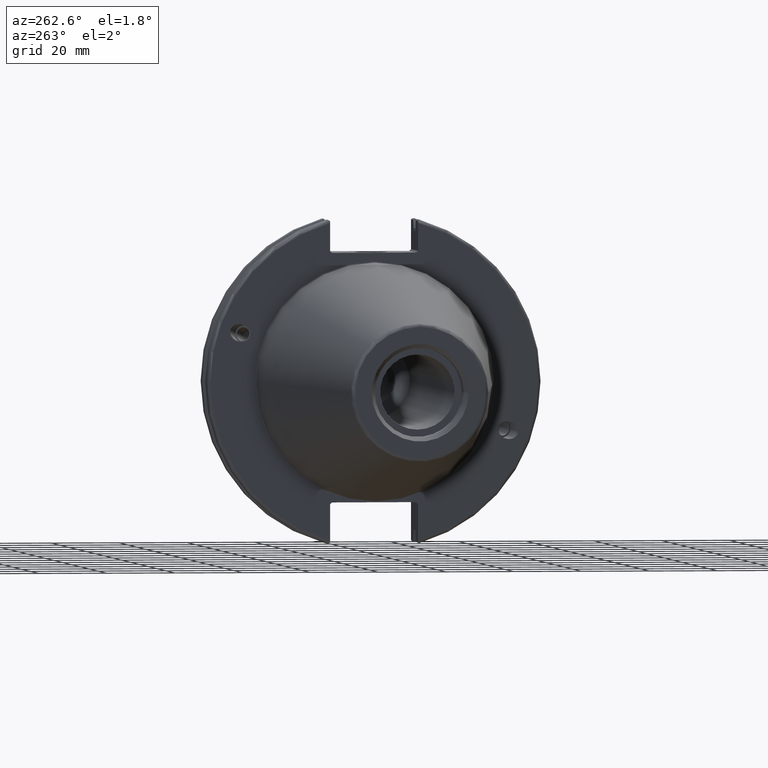
[diagram: clean part render]
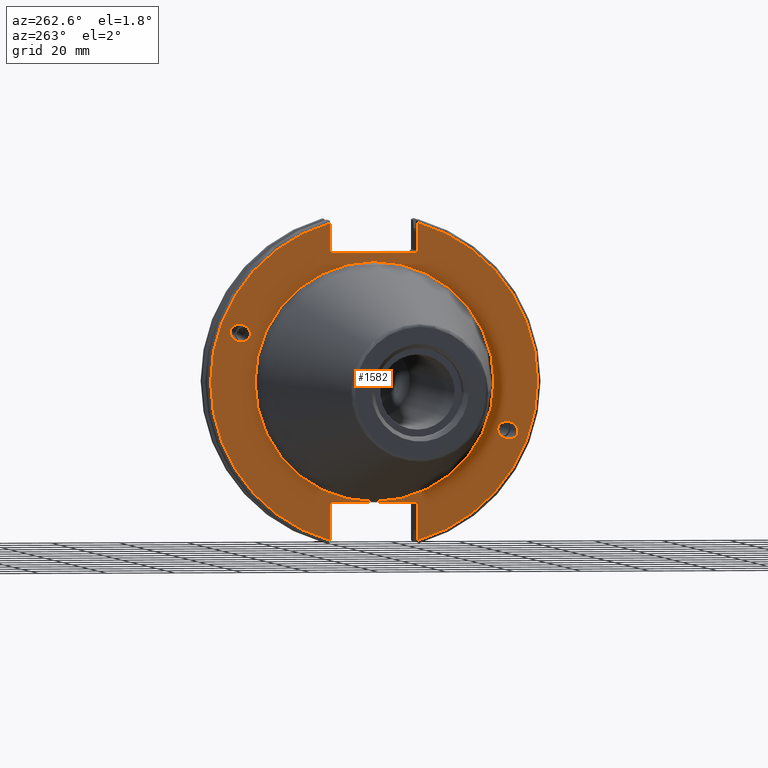
[diagram: same view with one face highlighted and labeled with its STEP entity id]
A machine part, auxiliary view. The second image highlights one B-rep face of the part: STEP entity #1582.
In plain terms, the highlighted planar face has unit normal (-1, 0, 0).
Its self-contained STEP definition (entity closure, byte-faithful):
#73=FACE_BOUND('',#342,.T.);
#74=FACE_BOUND('',#343,.T.);
#75=FACE_BOUND('',#344,.T.);
#90=PLANE('',#1749);
#165=CIRCLE('',#1747,35.125);
#167=CIRCLE('',#1750,48.2125);
#168=CIRCLE('',#1751,48.2125);
#235=FACE_OUTER_BOUND('',#341,.T.);
#341=EDGE_LOOP('',(#1273,#1274,#1275,#1276,#1277,#1278,#1279,#1280,#1281,
#1282,#1283,#1284));
#342=EDGE_LOOP('',(#1285));
#343=EDGE_LOOP('',(#1286));
#344=EDGE_LOOP('',(#1287));
#487=LINE('',#3087,#582);
#488=LINE('',#3089,#583);
#489=LINE('',#3091,#584);
#490=LINE('',#3093,#585);
#491=LINE('',#3095,#586);
#492=LINE('',#3099,#587);
#493=LINE('',#3101,#588);
#494=LINE('',#3103,#589);
#495=LINE('',#3105,#590);
#496=LINE('',#3106,#591);
#582=VECTOR('',#2071,10.);
#583=VECTOR('',#2072,10.);
#584=VECTOR('',#2073,10.);
#585=VECTOR('',#2074,10.);
#586=VECTOR('',#2075,10.);
#587=VECTOR('',#2078,10.);
#588=VECTOR('',#2079,10.);
#589=VECTOR('',#2080,10.);
#590=VECTOR('',#2081,10.);
#591=VECTOR('',#2082,10.);
#631=ELLIPSE('',#1709,3.05193647190364,2.5);
#632=ELLIPSE('',#1743,3.05193647190364,2.5);
#699=VERTEX_POINT('',#2812);
#737=VERTEX_POINT('',#3071);
#740=VERTEX_POINT('',#3078);
#741=VERTEX_POINT('',#3083);
#742=VERTEX_POINT('',#3084);
#743=VERTEX_POINT('',#3086);
#744=VERTEX_POINT('',#3088);
#745=VERTEX_POINT('',#3090);
#746=VERTEX_POINT('',#3092);
#747=VERTEX_POINT('',#3094);
#748=VERTEX_POINT('',#3096);
#749=VERTEX_POINT('',#3098);
#750=VERTEX_POINT('',#3100);
#751=VERTEX_POINT('',#3102);
#752=VERTEX_POINT('',#3104);
#881=EDGE_CURVE('',#699,#699,#631,.T.);
#932=EDGE_CURVE('',#737,#737,#632,.T.);
#935=EDGE_CURVE('',#740,#740,#165,.T.);
#937=EDGE_CURVE('',#741,#742,#167,.T.);
#938=EDGE_CURVE('',#741,#743,#487,.T.);
#939=EDGE_CURVE('',#744,#743,#488,.T.);
#940=EDGE_CURVE('',#744,#745,#489,.T.);
#941=EDGE_CURVE('',#746,#745,#490,.T.);
#942=EDGE_CURVE('',#746,#747,#491,.T.);
#943=EDGE_CURVE('',#748,#747,#168,.T.);
#944=EDGE_CURVE('',#748,#749,#492,.T.);
#945=EDGE_CURVE('',#750,#749,#493,.T.);
#946=EDGE_CURVE('',#750,#751,#494,.T.);
#947=EDGE_CURVE('',#752,#751,#495,.T.);
#948=EDGE_CURVE('',#752,#742,#496,.T.);
#1273=ORIENTED_EDGE('',*,*,#937,.F.);
#1274=ORIENTED_EDGE('',*,*,#938,.T.);
#1275=ORIENTED_EDGE('',*,*,#939,.F.);
#1276=ORIENTED_EDGE('',*,*,#940,.T.);
#1277=ORIENTED_EDGE('',*,*,#941,.F.);
#1278=ORIENTED_EDGE('',*,*,#942,.T.);
#1279=ORIENTED_EDGE('',*,*,#943,.F.);
#1280=ORIENTED_EDGE('',*,*,#944,.T.);
#1281=ORIENTED_EDGE('',*,*,#945,.F.);
#1282=ORIENTED_EDGE('',*,*,#946,.T.);
#1283=ORIENTED_EDGE('',*,*,#947,.F.);
#1284=ORIENTED_EDGE('',*,*,#948,.T.);
#1285=ORIENTED_EDGE('',*,*,#881,.T.);
#1286=ORIENTED_EDGE('',*,*,#932,.T.);
#1287=ORIENTED_EDGE('',*,*,#935,.F.);
#1582=ADVANCED_FACE('',(#235,#73,#74,#75),#90,.T.);
#1709=AXIS2_PLACEMENT_3D('',#2814,#1971,#1972);
#1743=AXIS2_PLACEMENT_3D('',#3073,#2055,#2056);
#1747=AXIS2_PLACEMENT_3D('',#3080,#2063,#2064);
#1749=AXIS2_PLACEMENT_3D('',#3082,#2067,#2068);
#1750=AXIS2_PLACEMENT_3D('',#3085,#2069,#2070);
#1751=AXIS2_PLACEMENT_3D('',#3097,#2076,#2077);
#1971=DIRECTION('center_axis',(1.,0.,0.));
#1972=DIRECTION('ref_axis',(0.,-0.939692620785908,-0.342020143325668));
#2055=DIRECTION('center_axis',(1.,0.,0.));
#2056=DIRECTION('ref_axis',(0.,0.939692620785908,0.342020143325669));
#2063=DIRECTION('center_axis',(-1.,0.,0.));
#2064=DIRECTION('ref_axis',(0.,-1.,1.83697019872103E-16));
#2067=DIRECTION('center_axis',(-1.,0.,0.));
#2068=DIRECTION('ref_axis',(0.,0.,1.));
#2069=DIRECTION('center_axis',(1.,0.,0.));
#2070=DIRECTION('ref_axis',(0.,-1.,1.60812264967664E-16));
#2071=DIRECTION('',(0.,0.,-1.));
#2072=DIRECTION('',(0.,-0.707106781186549,0.707106781186546));
#2073=DIRECTION('',(0.,1.,0.));
#2074=DIRECTION('',(0.,-0.707106781186549,-0.707106781186546));
#2075=DIRECTION('',(0.,0.,1.));
#2076=DIRECTION('center_axis',(1.,0.,0.));
#2077=DIRECTION('ref_axis',(0.,1.,-6.12323399573677E-17));
#2078=DIRECTION('',(0.,0.,1.));
#2079=DIRECTION('',(0.,0.707106781186549,-0.707106781186546));
#2080=DIRECTION('',(0.,-1.,0.));
#2081=DIRECTION('',(0.,0.707106781186549,0.707106781186546));
#2082=DIRECTION('',(0.,0.,-1.));
#2812=CARTESIAN_POINT('',(3.175,-36.5992078912529,-13.3210222701368));
#2814=CARTESIAN_POINT('Origin',(3.175,-39.4670900730082,-14.3648460196781));
#3071=CARTESIAN_POINT('',(3.175,36.5992078912529,13.3210222701368));
#3073=CARTESIAN_POINT('Origin',(3.175,39.4670900730082,14.3648460196781));
#3078=CARTESIAN_POINT('',(3.175,-4.30157188200508E-15,35.125));
#3080=CARTESIAN_POINT('Origin',(3.175,0.,0.));
#3082=CARTESIAN_POINT('Origin',(3.175,49.2125,0.));
#3083=CARTESIAN_POINT('',(3.175,-12.95,46.4407434937254));
#3084=CARTESIAN_POINT('',(3.175,-12.95,-46.4407434937254));
#3085=CARTESIAN_POINT('Origin',(3.175,0.,0.));
#3086=CARTESIAN_POINT('',(3.175,-12.95,38.219));
#3087=CARTESIAN_POINT('',(3.175,-12.95,18.8595));
#3088=CARTESIAN_POINT('',(3.175,-12.45,37.719));
#3089=CARTESIAN_POINT('',(3.175,12.2703750000001,12.998625));
#3090=CARTESIAN_POINT('',(3.175,12.45,37.719));
#3091=CARTESIAN_POINT('',(3.175,24.60625,37.719));
#3092=CARTESIAN_POINT('',(3.175,12.95,38.219));
#3093=CARTESIAN_POINT('',(3.175,12.335875,37.604875));
#3094=CARTESIAN_POINT('',(3.175,12.95,46.4407434937254));
#3095=CARTESIAN_POINT('',(3.175,12.95,18.8595));
#3096=CARTESIAN_POINT('',(3.175,12.95,-46.4407434937254));
#3097=CARTESIAN_POINT('Origin',(3.175,0.,0.));
#3098=CARTESIAN_POINT('',(3.175,12.95,-35.806));
#3099=CARTESIAN_POINT('',(3.175,12.95,-17.653));
#3100=CARTESIAN_POINT('',(3.175,12.45,-35.306));
#3101=CARTESIAN_POINT('',(3.175,12.939125,-35.795125));
#3102=CARTESIAN_POINT('',(3.175,-12.45,-35.306));
#3103=CARTESIAN_POINT('',(3.175,24.60625,-35.306));
#3104=CARTESIAN_POINT('',(3.175,-12.95,-35.806));
#3105=CARTESIAN_POINT('',(3.175,11.6671250000001,-11.188875));
#3106=CARTESIAN_POINT('',(3.175,-12.95,-17.653));